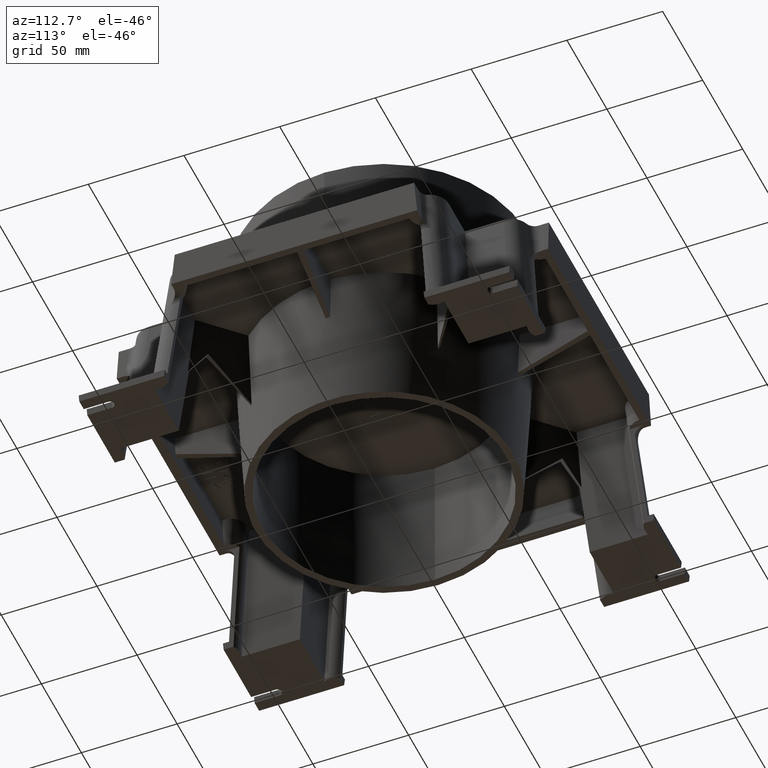
[diagram: clean part render]
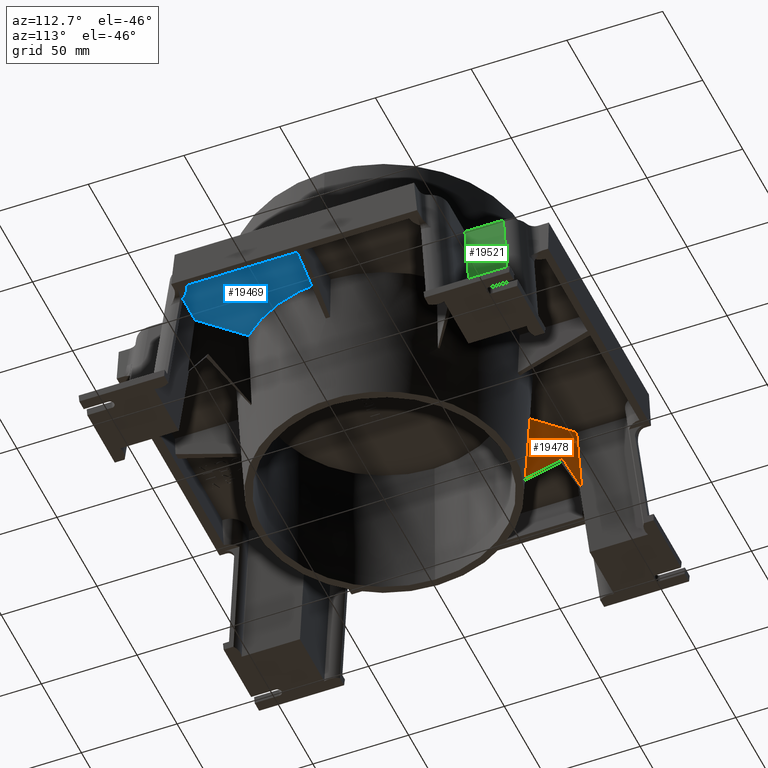
[diagram: same view with three faces highlighted in distinct colors, each labeled with its STEP entity id]
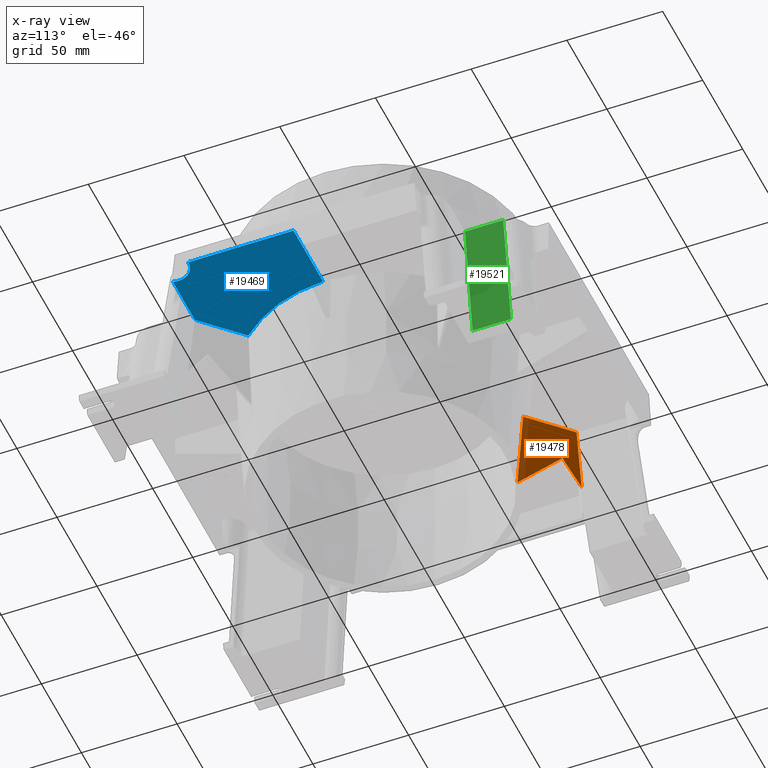
[diagram: x-ray of the same camera — body ghosted, the three highlighted faces saturated]
A machine part, auxiliary view with three faces highlighted in distinct colors.
The next image is the same camera in x-ray (body ghosted, the three faces saturated) — at least one of them is partly hidden behind the body in this view.
Their STEP definitions:

[orange] entity #19478 — the highlighted planar face has unit normal (0.7067, 0.7067, -0.0349).
#284=(
BOUNDED_CURVE()
B_SPLINE_CURVE(2,(#27064,#27065,#27066),.UNSPECIFIED.,.F.,.F.)
B_SPLINE_CURVE_WITH_KNOTS((3,3),(0.000121953649078882,4.50903538834832),
 .UNSPECIFIED.)
CURVE()
GEOMETRIC_REPRESENTATION_ITEM()
RATIONAL_B_SPLINE_CURVE((1.00000000422158,1.00007804306915,1.00000003814082))
REPRESENTATION_ITEM('')
);
#579=FACE_OUTER_BOUND('',#1573,.T.);
#1573=EDGE_LOOP('',(#12487,#12488,#12489,#12490,#12491));
#2872=LINE('',#27027,#5146);
#2880=LINE('',#27041,#5154);
#2883=LINE('',#27051,#5157);
#2887=LINE('',#27067,#5161);
#5146=VECTOR('',#22030,10.);
#5154=VECTOR('',#22042,10.);
#5157=VECTOR('',#22051,10.);
#5161=VECTOR('',#22063,10.);
#7766=VERTEX_POINT('',#27024);
#7767=VERTEX_POINT('',#27026);
#7771=VERTEX_POINT('',#27039);
#7775=VERTEX_POINT('',#27049);
#7780=VERTEX_POINT('',#27063);
#9643=EDGE_CURVE('',#7766,#7767,#2872,.T.);
#9651=EDGE_CURVE('',#7766,#7771,#2880,.T.);
#9656=EDGE_CURVE('',#7771,#7775,#2883,.T.);
#9662=EDGE_CURVE('',#7775,#7780,#284,.T.);
#9663=EDGE_CURVE('',#7767,#7780,#2887,.T.);
#12487=ORIENTED_EDGE('',*,*,#9656,.T.);
#12488=ORIENTED_EDGE('',*,*,#9662,.T.);
#12489=ORIENTED_EDGE('',*,*,#9663,.F.);
#12490=ORIENTED_EDGE('',*,*,#9643,.F.);
#12491=ORIENTED_EDGE('',*,*,#9651,.T.);
#17696=PLANE('',#20569);
#19478=ADVANCED_FACE('',(#579),#17696,.T.);
#20569=AXIS2_PLACEMENT_3D('',#27062,#22061,#22062);
#22030=DIRECTION('',(0.409184313280374,-0.367948756999902,0.83497419719863));
#22042=DIRECTION('',(0.0870930222888494,-0.0379309272394017,0.995477799967108));
#22051=DIRECTION('',(0.707106781186536,-0.70710678118656,0.));
#22061=DIRECTION('center_axis',(0.706676030840847,0.706676030840823,-0.034899496702501));
#22062=DIRECTION('ref_axis',(-0.0246776707783364,-0.0246776707783356,-0.999390827019096));
#22063=DIRECTION('',(0.460427110891327,-0.496759381388652,-0.735688108207975));
#27024=CARTESIAN_POINT('',(-71.9511580032751,73.0203992063646,-39.6215602541619));
#27026=CARTESIAN_POINT('',(-64.2957149651394,66.1364335734116,-24.));
#27027=CARTESIAN_POINT('',(-65.9889146517947,67.6590010322245,-27.4551130216305));
#27039=CARTESIAN_POINT('',(-68.8346753039303,71.6631024286773,-4.));
#27041=CARTESIAN_POINT('',(-70.5125363088802,72.3938478090077,-23.1780390433412));
#27049=CARTESIAN_POINT('',(-49.1862512583889,52.0146783831353,-4.));
#27051=CARTESIAN_POINT('',(-23.0620955886197,25.8905227133651,-4.));
#27062=CARTESIAN_POINT('Origin',(-48.6488999246368,49.2563366793329,-48.9725872158593));
#27063=CARTESIAN_POINT('',(-48.6486201527318,49.2546276248132,-49.0015286007083));
#27064=CARTESIAN_POINT('Ctrl Pts',(-49.1862512583889,52.0146783831353,-4.));
#27065=CARTESIAN_POINT('Ctrl Pts',(-48.9188716325648,50.6176844124857,-26.8734353502856));
#27066=CARTESIAN_POINT('Ctrl Pts',(-48.6486201527274,49.254627624791,-49.0015286010682));
#27067=CARTESIAN_POINT('',(-48.6516905649433,49.2579403230334,-48.9966225782394));

[blue] entity #19469 — the highlighted planar face has unit normal (0, 0, 1).
#327=ELLIPSE('',#20553,9.06862675005315,9.);
#446=CIRCLE('',#20552,71.5878067840772);
#570=FACE_OUTER_BOUND('',#1564,.T.);
#1564=EDGE_LOOP('',(#12430,#12431,#12432,#12433,#12434,#12435));
#2847=LINE('',#26955,#5121);
#2856=LINE('',#26976,#5130);
#2857=LINE('',#26980,#5131);
#2858=LINE('',#26982,#5132);
#5121=VECTOR('',#21977,10.);
#5130=VECTOR('',#21996,10.);
#5131=VECTOR('',#21999,10.);
#5132=VECTOR('',#22000,10.);
#7739=VERTEX_POINT('',#26952);
#7740=VERTEX_POINT('',#26954);
#7747=VERTEX_POINT('',#26975);
#7748=VERTEX_POINT('',#26977);
#7749=VERTEX_POINT('',#26979);
#7750=VERTEX_POINT('',#26981);
#9609=EDGE_CURVE('',#7739,#7740,#2847,.T.);
#9620=EDGE_CURVE('',#7747,#7739,#2856,.T.);
#9621=EDGE_CURVE('',#7747,#7748,#446,.F.);
#9622=EDGE_CURVE('',#7749,#7748,#2857,.T.);
#9623=EDGE_CURVE('',#7750,#7749,#2858,.T.);
#9624=EDGE_CURVE('',#7740,#7750,#327,.T.);
#12430=ORIENTED_EDGE('',*,*,#9609,.F.);
#12431=ORIENTED_EDGE('',*,*,#9620,.F.);
#12432=ORIENTED_EDGE('',*,*,#9621,.T.);
#12433=ORIENTED_EDGE('',*,*,#9622,.F.);
#12434=ORIENTED_EDGE('',*,*,#9623,.F.);
#12435=ORIENTED_EDGE('',*,*,#9624,.F.);
#17687=PLANE('',#20551);
#19469=ADVANCED_FACE('',(#570),#17687,.F.);
#20551=AXIS2_PLACEMENT_3D('',#26974,#21994,#21995);
#20552=AXIS2_PLACEMENT_3D('',#26978,#21997,#21998);
#20553=AXIS2_PLACEMENT_3D('',#26983,#22001,#22002);
#21977=DIRECTION('',(1.,2.22044604925031E-16,0.));
#21994=DIRECTION('center_axis',(0.,0.,1.));
#21995=DIRECTION('ref_axis',(1.,0.,0.));
#21996=DIRECTION('',(0.707106781186535,-0.70710678118656,0.));
#21997=DIRECTION('center_axis',(0.,0.,-1.));
#21998=DIRECTION('ref_axis',(1.,0.,0.));
#21999=DIRECTION('',(-1.,6.30009937819699E-18,0.));
#22000=DIRECTION('',(0.,1.,0.));
#22001=DIRECTION('center_axis',(0.,0.,-1.));
#22002=DIRECTION('ref_axis',(-0.707106781186547,0.707106781186547,0.));
#26952=CARTESIAN_POINT('',(71.6631024286756,-68.8346753039303,-4.));
#26954=CARTESIAN_POINT('',(99.268364590335,-68.8346753039303,-4.));
#26955=CARTESIAN_POINT('',(56.25,-68.8346753039303,-4.));
#26974=CARTESIAN_POINT('Origin',(0.,0.,-4.));
#26975=CARTESIAN_POINT('',(52.0146783831351,-49.1862512583891,-4.));
#26976=CARTESIAN_POINT('',(49.8142752617067,-46.9858481369607,-4.));
#26977=CARTESIAN_POINT('',(71.5598636119045,-2.,-4.));
#26978=CARTESIAN_POINT('Origin',(0.,0.,-4.));
#26979=CARTESIAN_POINT('',(108.5,-2.,-4.));
#26980=CARTESIAN_POINT('',(43.4757902128916,-2.,-4.));
#26981=CARTESIAN_POINT('',(108.5,-57.1272931948534,-4.));
#26982=CARTESIAN_POINT('',(108.5,-56.25,-4.));
#26983=CARTESIAN_POINT('Origin',(107.86905384182,-66.1345599214753,-4.));

[green] entity #19521 — the highlighted planar face has unit normal (-0.9962, 0, -0.0872).
#622=FACE_OUTER_BOUND('',#1638,.T.);
#1638=EDGE_LOOP('',(#12930,#12931,#12932,#12933));
#2717=LINE('',#26381,#4991);
#3136=LINE('',#28320,#5410);
#3137=LINE('',#28321,#5411);
#3138=LINE('',#28322,#5412);
#4991=VECTOR('',#21781,10.);
#5410=VECTOR('',#22454,10.);
#5411=VECTOR('',#22455,10.);
#5412=VECTOR('',#22456,10.);
#7556=VERTEX_POINT('',#26378);
#7557=VERTEX_POINT('',#26380);
#8115=VERTEX_POINT('',#28318);
#8116=VERTEX_POINT('',#28319);
#9423=EDGE_CURVE('',#7556,#7557,#2717,.T.);
#10034=EDGE_CURVE('',#8115,#8116,#3136,.T.);
#10035=EDGE_CURVE('',#7557,#8116,#3137,.T.);
#10036=EDGE_CURVE('',#8115,#7556,#3138,.T.);
#12930=ORIENTED_EDGE('',*,*,#10034,.T.);
#12931=ORIENTED_EDGE('',*,*,#10035,.F.);
#12932=ORIENTED_EDGE('',*,*,#9423,.F.);
#12933=ORIENTED_EDGE('',*,*,#10036,.F.);
#17732=PLANE('',#20640);
#19521=ADVANCED_FACE('',(#622),#17732,.F.);
#20640=AXIS2_PLACEMENT_3D('',#28317,#22452,#22453);
#21781=DIRECTION('',(0.,-1.,0.));
#22452=DIRECTION('center_axis',(-0.996194698091746,0.,-0.0871557427476582));
#22453=DIRECTION('ref_axis',(-0.0871557427476582,0.,0.996194698091746));
#22454=DIRECTION('',(0.,-1.,0.));
#22455=DIRECTION('',(-0.0868265938642476,-0.0868265938642476,0.992432509138967));
#22456=DIRECTION('',(0.0868265938642476,0.0868265938642476,-0.992432509138967));
#26378=CARTESIAN_POINT('',(79.3241157550221,99.3621687741046,-78.));
#26380=CARTESIAN_POINT('',(79.3241157550221,79.3241157550221,-78.));
#26381=CARTESIAN_POINT('',(79.3241157550221,102.5,-78.));
#28317=CARTESIAN_POINT('Origin',(72.5,112.5,0.));
#28318=CARTESIAN_POINT('',(72.5,92.5380530190826,0.));
#28319=CARTESIAN_POINT('',(72.5,72.5,0.));
#28320=CARTESIAN_POINT('',(72.5,56.25,0.));
#28321=CARTESIAN_POINT('',(72.6507771480413,72.6507771480413,-1.72339068817371));
#28322=CARTESIAN_POINT('',(72.5751016977361,92.6131547168186,-0.858416333149664));